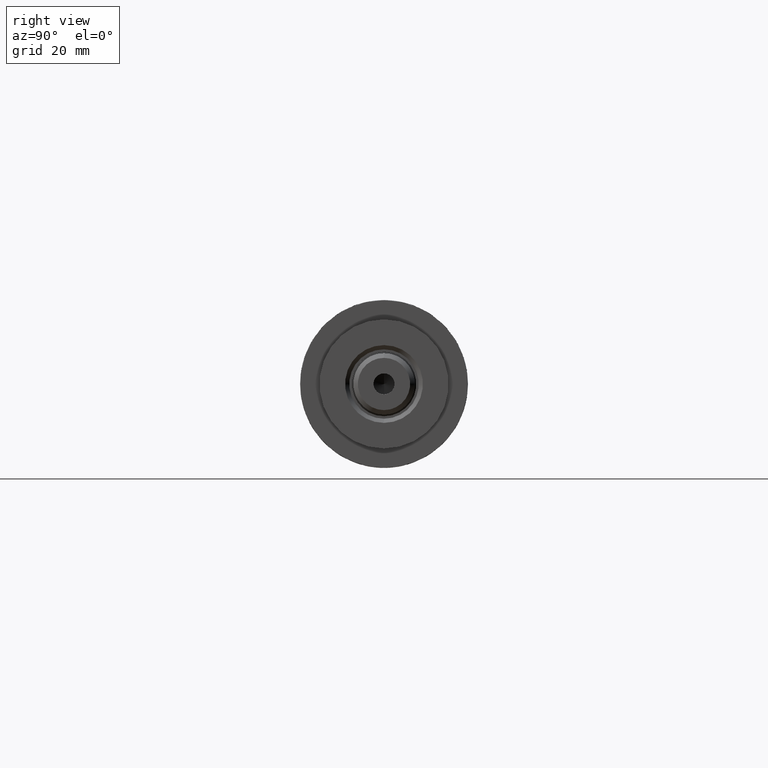
[diagram: clean part render]
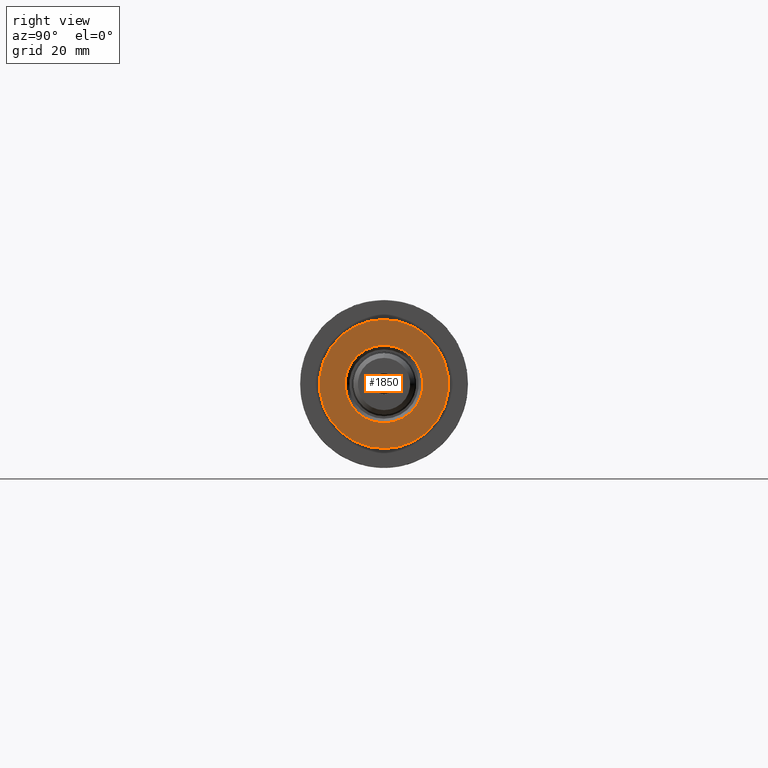
[diagram: same view with one face highlighted and labeled with its STEP entity id]
A machine part, right view. The second image highlights one B-rep face of the part: STEP entity #1850.
In plain terms, the highlighted planar face has unit normal (1, 0, -0).
Its self-contained STEP definition (entity closure, byte-faithful):
#399 = VERTEX_POINT ( 'NONE', #3530 ) ;
#436 = ORIENTED_EDGE ( 'NONE', *, *, #562, .T. ) ;
#531 = CARTESIAN_POINT ( 'NONE',  ( 0.000000000000000000, 0.000000000000000000, 33.50000000000000000 ) ) ;
#562 = EDGE_CURVE ( 'NONE', #4951, #3123, #3893, .T. ) ;
#603 = EDGE_LOOP ( 'NONE', ( #1888, #1165 ) ) ;
#874 = CIRCLE ( 'NONE', #4151, 12.05000000000000426 ) ;
#904 = CARTESIAN_POINT ( 'NONE',  ( 0.000000000000000000, 0.000000000000000000, 33.50000000000000000 ) ) ;
#1081 = EDGE_CURVE ( 'NONE', #3123, #4951, #1869, .T. ) ;
#1165 = ORIENTED_EDGE ( 'NONE', *, *, #3492, .T. ) ;
#1203 = CIRCLE ( 'NONE', #5160, 12.05000000000000426 ) ;
#1252 = DIRECTION ( 'NONE',  ( 1.000000000000000000, 0.000000000000000000, 0.000000000000000000 ) ) ;
#1319 = DIRECTION ( 'NONE',  ( 0.000000000000000000, 0.000000000000000000, 1.000000000000000000 ) ) ;
#1423 = FACE_OUTER_BOUND ( 'NONE', #4860, .T. ) ;
#1850 = ADVANCED_FACE ( 'NONE', ( #3397, #1423 ), #2976, .T. ) ;
#1869 = CIRCLE ( 'NONE', #3367, 19.99999999999999645 ) ;
#1888 = ORIENTED_EDGE ( 'NONE', *, *, #4424, .T. ) ;
#2388 = DIRECTION ( 'NONE',  ( -0.000000000000000000, -0.000000000000000000, -1.000000000000000000 ) ) ;
#2432 = VERTEX_POINT ( 'NONE', #4949 ) ;
#2464 = CARTESIAN_POINT ( 'NONE',  ( 0.000000000000000000, 0.000000000000000000, 33.50000000000000000 ) ) ;
#2976 = PLANE ( 'NONE',  #4981 ) ;
#3041 = CARTESIAN_POINT ( 'NONE',  ( 0.000000000000000000, 0.000000000000000000, 33.50000000000000000 ) ) ;
#3105 = CARTESIAN_POINT ( 'NONE',  ( 0.000000000000000000, 0.000000000000000000, 33.50000000000000000 ) ) ;
#3123 = VERTEX_POINT ( 'NONE', #4079 ) ;
#3367 = AXIS2_PLACEMENT_3D ( 'NONE', #3041, #3545, #5151 ) ;
#3397 = FACE_BOUND ( 'NONE', #603, .T. ) ;
#3492 = EDGE_CURVE ( 'NONE', #399, #2432, #1203, .T. ) ;
#3530 = CARTESIAN_POINT ( 'NONE',  ( -12.05000000000000426, 1.475699392972560823E-15, 33.50000000000000000 ) ) ;
#3545 = DIRECTION ( 'NONE',  ( 0.000000000000000000, 0.000000000000000000, 1.000000000000000000 ) ) ;
#3703 = AXIS2_PLACEMENT_3D ( 'NONE', #2464, #4001, #1252 ) ;
#3716 = DIRECTION ( 'NONE',  ( 1.000000000000000000, 0.000000000000000000, 0.000000000000000000 ) ) ;
#3893 = CIRCLE ( 'NONE', #3703, 19.99999999999999645 ) ;
#3997 = DIRECTION ( 'NONE',  ( 1.000000000000000000, 0.000000000000000000, 0.000000000000000000 ) ) ;
#4001 = DIRECTION ( 'NONE',  ( 0.000000000000000000, 0.000000000000000000, 1.000000000000000000 ) ) ;
#4079 = CARTESIAN_POINT ( 'NONE',  ( -19.99999999999999645, 0.000000000000000000, 33.50000000000000000 ) ) ;
#4151 = AXIS2_PLACEMENT_3D ( 'NONE', #3105, #2388, #3997 ) ;
#4424 = EDGE_CURVE ( 'NONE', #2432, #399, #874, .T. ) ;
#4530 = DIRECTION ( 'NONE',  ( -0.000000000000000000, -0.000000000000000000, -1.000000000000000000 ) ) ;
#4553 = CARTESIAN_POINT ( 'NONE',  ( 19.99999999999999645, 2.449293598294706119E-15, 33.50000000000000000 ) ) ;
#4715 = ORIENTED_EDGE ( 'NONE', *, *, #1081, .T. ) ;
#4860 = EDGE_LOOP ( 'NONE', ( #4715, #436 ) ) ;
#4949 = CARTESIAN_POINT ( 'NONE',  ( 12.05000000000000426, 0.000000000000000000, 33.50000000000000000 ) ) ;
#4951 = VERTEX_POINT ( 'NONE', #4553 ) ;
#4981 = AXIS2_PLACEMENT_3D ( 'NONE', #531, #1319, #5027 ) ;
#5027 = DIRECTION ( 'NONE',  ( 1.000000000000000000, 0.000000000000000000, -0.000000000000000000 ) ) ;
#5151 = DIRECTION ( 'NONE',  ( 1.000000000000000000, 0.000000000000000000, 0.000000000000000000 ) ) ;
#5160 = AXIS2_PLACEMENT_3D ( 'NONE', #904, #4530, #3716 ) ;